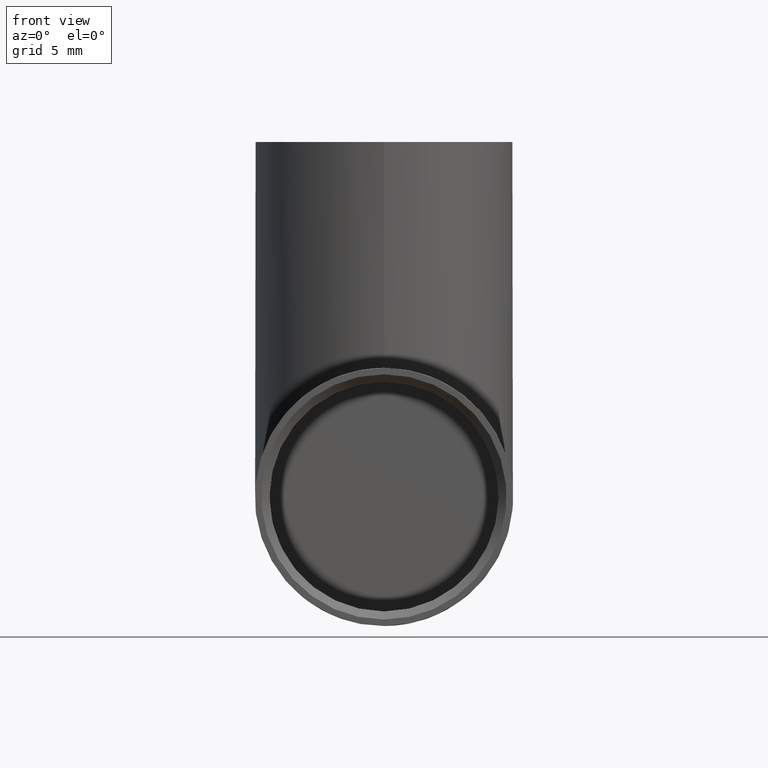
[diagram: clean part render]
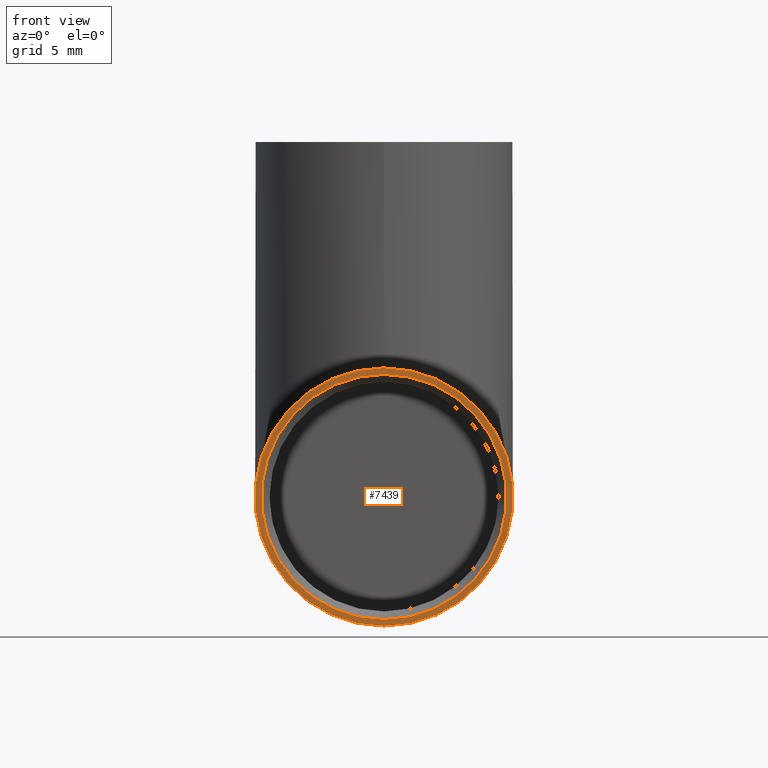
[diagram: same view with one face highlighted and labeled with its STEP entity id]
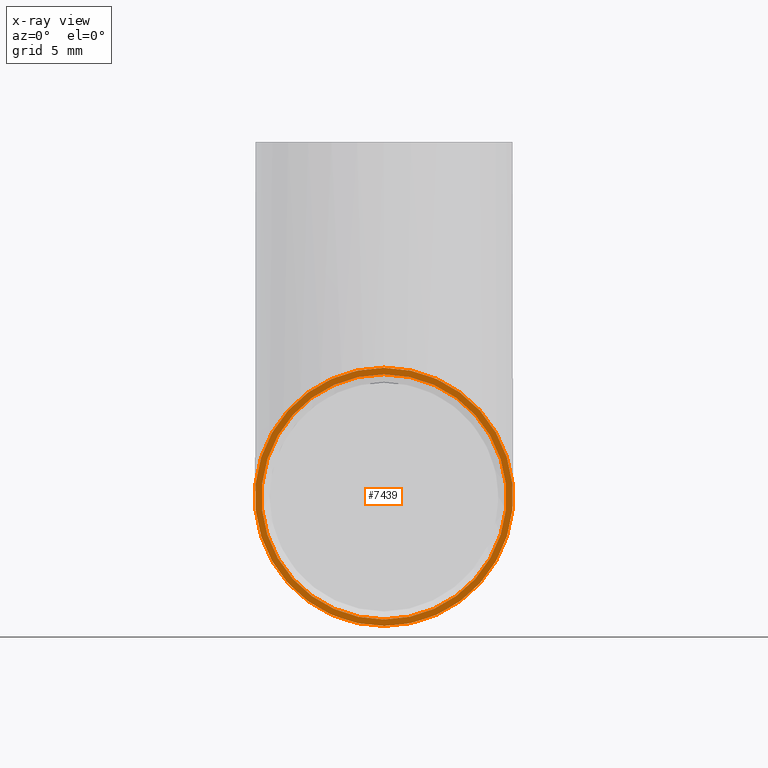
[diagram: x-ray of the same camera — body ghosted, the highlighted face saturated]
A machine part, front view. The second image highlights one B-rep face of the part: STEP entity #7439.
The next image is the same camera in x-ray: the body ghosted, the highlighted face saturated — about 0% of this face is hidden behind the body in this view.
In plain terms, the highlighted planar face has unit normal (0, 1, 0).
Its self-contained STEP definition (entity closure, byte-faithful):
#169 = DIRECTION ( 'NONE',  ( 0.000000000000000000, -0.000000000000000000, 1.000000000000000000 ) ) ;
#700 = ORIENTED_EDGE ( 'NONE', *, *, #5221, .T. ) ;
#1141 = DIRECTION ( 'NONE',  ( 0.000000000000000000, 1.000000000000000000, 0.000000000000000000 ) ) ;
#1685 = DIRECTION ( 'NONE',  ( 0.000000000000000000, 0.000000000000000000, 1.000000000000000000 ) ) ;
#1697 = CIRCLE ( 'NONE', #6095, 8.000000000000000000 ) ;
#1841 = VERTEX_POINT ( 'NONE', #7175 ) ;
#1992 = CIRCLE ( 'NONE', #10321, 8.000000000000000000 ) ;
#2088 = CARTESIAN_POINT ( 'NONE',  ( 0.000000000000000000, 0.000000000000000000, 0.000000000000000000 ) ) ;
#2151 = DIRECTION ( 'NONE',  ( 0.000000000000000000, 0.000000000000000000, 1.000000000000000000 ) ) ;
#2638 = EDGE_LOOP ( 'NONE', ( #7748, #700 ) ) ;
#2961 = VERTEX_POINT ( 'NONE', #8048 ) ;
#3216 = DIRECTION ( 'NONE',  ( 0.000000000000000000, 1.000000000000000000, 0.000000000000000000 ) ) ;
#3451 = CARTESIAN_POINT ( 'NONE',  ( 0.000000000000000000, 0.000000000000000000, 0.000000000000000000 ) ) ;
#3620 = FACE_OUTER_BOUND ( 'NONE', #4693, .T. ) ;
#4646 = FACE_BOUND ( 'NONE', #2638, .T. ) ;
#4693 = EDGE_LOOP ( 'NONE', ( #4715, #4940 ) ) ;
#4715 = ORIENTED_EDGE ( 'NONE', *, *, #5407, .F. ) ;
#4940 = ORIENTED_EDGE ( 'NONE', *, *, #6032, .F. ) ;
#5013 = DIRECTION ( 'NONE',  ( 0.000000000000000000, 0.000000000000000000, 1.000000000000000000 ) ) ;
#5221 = EDGE_CURVE ( 'NONE', #8458, #12199, #8071, .T. ) ;
#5281 = CARTESIAN_POINT ( 'NONE',  ( 0.000000000000000000, 0.000000000000000000, 0.000000000000000000 ) ) ;
#5301 = AXIS2_PLACEMENT_3D ( 'NONE', #2088, #1141, #169 ) ;
#5365 = CARTESIAN_POINT ( 'NONE',  ( 0.000000000000000000, 0.000000000000000000, -7.600000000000002309 ) ) ;
#5407 = EDGE_CURVE ( 'NONE', #1841, #2961, #1697, .T. ) ;
#5876 = DIRECTION ( 'NONE',  ( 0.000000000000000000, 1.000000000000000000, 0.000000000000000000 ) ) ;
#6032 = EDGE_CURVE ( 'NONE', #2961, #1841, #1992, .T. ) ;
#6095 = AXIS2_PLACEMENT_3D ( 'NONE', #10807, #3216, #5013 ) ;
#6210 = DIRECTION ( 'NONE',  ( 0.000000000000000000, 1.000000000000000000, 0.000000000000000000 ) ) ;
#6488 = AXIS2_PLACEMENT_3D ( 'NONE', #8656, #5876, #2151 ) ;
#7175 = CARTESIAN_POINT ( 'NONE',  ( 0.000000000000000000, 0.000000000000000000, -8.000000000000000000 ) ) ;
#7439 = ADVANCED_FACE ( 'NONE', ( #4646, #3620 ), #8757, .F. ) ;
#7748 = ORIENTED_EDGE ( 'NONE', *, *, #9862, .T. ) ;
#8023 = CIRCLE ( 'NONE', #8347, 7.600000000000002309 ) ;
#8048 = CARTESIAN_POINT ( 'NONE',  ( 9.797174393178823685E-16, 0.000000000000000000, 8.000000000000000000 ) ) ;
#8071 = CIRCLE ( 'NONE', #6488, 7.600000000000002309 ) ;
#8347 = AXIS2_PLACEMENT_3D ( 'NONE', #3451, #10067, #1685 ) ;
#8458 = VERTEX_POINT ( 'NONE', #10048 ) ;
#8656 = CARTESIAN_POINT ( 'NONE',  ( 0.000000000000000000, 0.000000000000000000, 0.000000000000000000 ) ) ;
#8757 = PLANE ( 'NONE',  #5301 ) ;
#9862 = EDGE_CURVE ( 'NONE', #12199, #8458, #8023, .T. ) ;
#10048 = CARTESIAN_POINT ( 'NONE',  ( 9.307315673519889404E-16, 0.000000000000000000, 7.600000000000002309 ) ) ;
#10067 = DIRECTION ( 'NONE',  ( 0.000000000000000000, 1.000000000000000000, 0.000000000000000000 ) ) ;
#10321 = AXIS2_PLACEMENT_3D ( 'NONE', #5281, #6210, #11007 ) ;
#10807 = CARTESIAN_POINT ( 'NONE',  ( 0.000000000000000000, 0.000000000000000000, 0.000000000000000000 ) ) ;
#11007 = DIRECTION ( 'NONE',  ( 0.000000000000000000, 0.000000000000000000, 1.000000000000000000 ) ) ;
#12199 = VERTEX_POINT ( 'NONE', #5365 ) ;